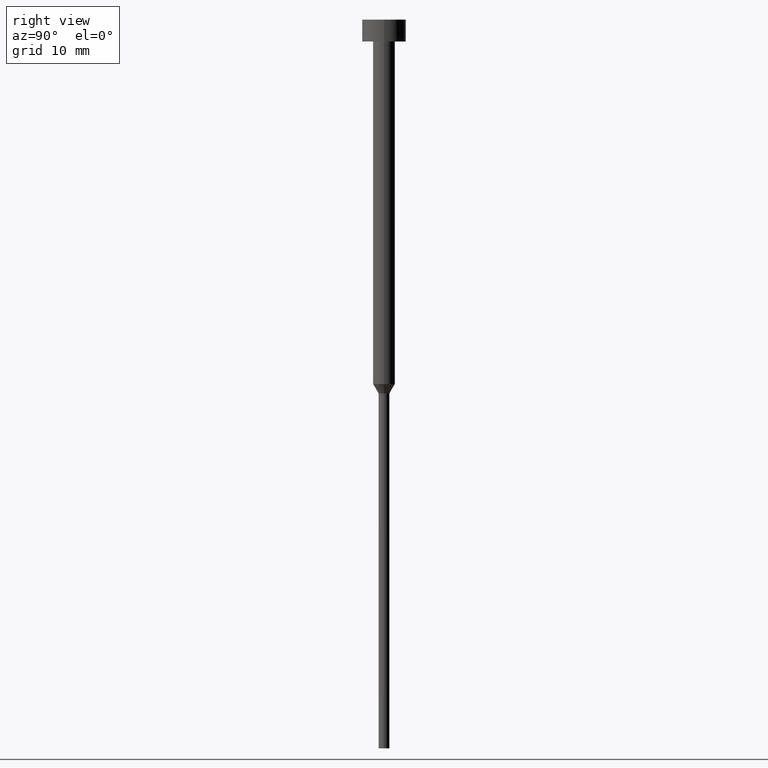
[diagram: clean part render]
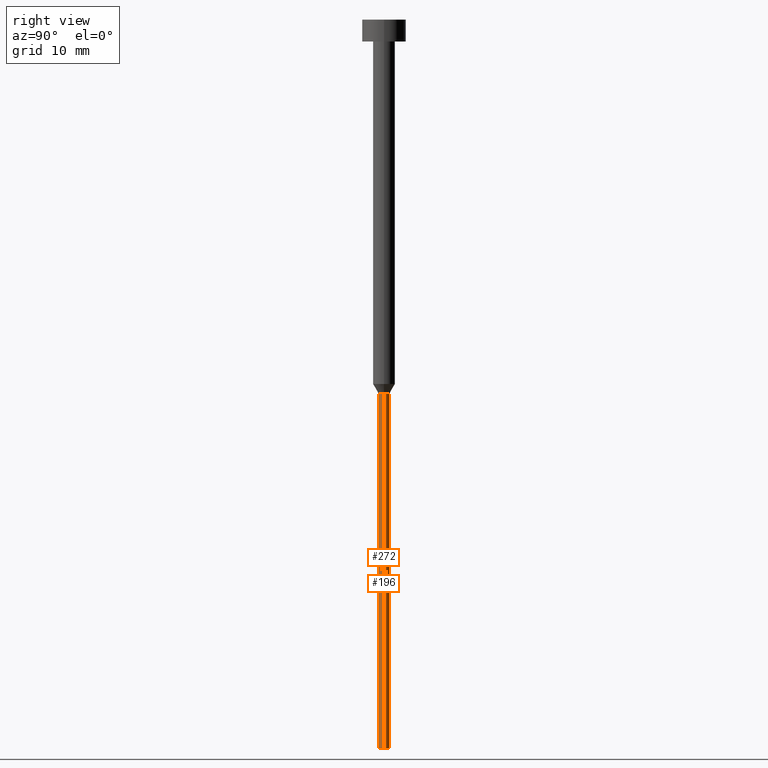
[diagram: same view with one multi-face feature highlighted, each face labeled with its STEP entity id]
A machine part, right view. The highlighted faces form ONE feature: a constant-radius fillet chain: 2 tangent blend faces with common blend radius 0.75 mm. The faces share edges in the B-rep.
Their STEP definitions:
[1] entity #272 (Cylinder):
#12 = CARTESIAN_POINT ( 'NONE',  ( 0.000000000000000000, 0.000000000000000000, -100.0000000000000000 ) ) ;
#19 = LINE ( 'NONE', #129, #176 ) ;
#20 = DIRECTION ( 'NONE',  ( -0.000000000000000000, -0.000000000000000000, 1.000000000000000000 ) ) ;
#25 = VERTEX_POINT ( 'NONE', #67 ) ;
#42 = VERTEX_POINT ( 'NONE', #286 ) ;
#43 = DIRECTION ( 'NONE',  ( -0.000000000000000000, -0.000000000000000000, 1.000000000000000000 ) ) ;
#49 = DIRECTION ( 'NONE',  ( 1.000000000000000000, 0.000000000000000000, 0.000000000000000000 ) ) ;
#67 = CARTESIAN_POINT ( 'NONE',  ( 0.7500000000000000000, 0.000000000000000000, -100.0000000000000000 ) ) ;
#74 = CARTESIAN_POINT ( 'NONE',  ( 0.000000000000000000, 0.000000000000000000, -51.29903810567665090 ) ) ;
#79 = DIRECTION ( 'NONE',  ( -0.000000000000000000, -0.000000000000000000, 1.000000000000000000 ) ) ;
#84 = ORIENTED_EDGE ( 'NONE', *, *, #245, .F. ) ;
#118 = FACE_OUTER_BOUND ( 'NONE', #121, .T. ) ;
#121 = EDGE_LOOP ( 'NONE', ( #84, #133, #344, #165 ) ) ;
#127 = EDGE_CURVE ( 'NONE', #290, #25, #342, .T. ) ;
#128 = CYLINDRICAL_SURFACE ( 'NONE', #171, 0.7500000000000000000 ) ;
#129 = CARTESIAN_POINT ( 'NONE',  ( -0.7500000000000000000, 9.184850993605149670E-17, 0.000000000000000000 ) ) ;
#133 = ORIENTED_EDGE ( 'NONE', *, *, #127, .T. ) ;
#151 = CARTESIAN_POINT ( 'NONE',  ( -0.7500000000000000000, 9.184850993605149670E-17, -51.29903810567665090 ) ) ;
#162 = VECTOR ( 'NONE', #20, 1000.000000000000000 ) ;
#165 = ORIENTED_EDGE ( 'NONE', *, *, #330, .F. ) ;
#171 = AXIS2_PLACEMENT_3D ( 'NONE', #349, #43, #260 ) ;
#176 = VECTOR ( 'NONE', #352, 1000.000000000000000 ) ;
#178 = VERTEX_POINT ( 'NONE', #151 ) ;
#197 = AXIS2_PLACEMENT_3D ( 'NONE', #74, #79, #49 ) ;
#208 = DIRECTION ( 'NONE',  ( -0.000000000000000000, -0.000000000000000000, 1.000000000000000000 ) ) ;
#245 = EDGE_CURVE ( 'NONE', #290, #178, #19, .T. ) ;
#247 = CIRCLE ( 'NONE', #197, 0.7500000000000000000 ) ;
#260 = DIRECTION ( 'NONE',  ( 1.000000000000000000, 0.000000000000000000, 0.000000000000000000 ) ) ;
#261 = LINE ( 'NONE', #318, #162 ) ;
#272 = ADVANCED_FACE ( 'NONE', ( #118 ), #128, .T. ) ;
#286 = CARTESIAN_POINT ( 'NONE',  ( 0.7500000000000000000, 0.000000000000000000, -51.29903810567665090 ) ) ;
#290 = VERTEX_POINT ( 'NONE', #312 ) ;
#310 = AXIS2_PLACEMENT_3D ( 'NONE', #12, #208, #313 ) ;
#312 = CARTESIAN_POINT ( 'NONE',  ( -0.7500000000000000000, 9.184850993605149670E-17, -100.0000000000000000 ) ) ;
#313 = DIRECTION ( 'NONE',  ( 1.000000000000000000, 0.000000000000000000, 0.000000000000000000 ) ) ;
#318 = CARTESIAN_POINT ( 'NONE',  ( 0.7500000000000000000, 0.000000000000000000, 0.000000000000000000 ) ) ;
#330 = EDGE_CURVE ( 'NONE', #178, #42, #247, .T. ) ;
#342 = CIRCLE ( 'NONE', #310, 0.7500000000000000000 ) ;
#344 = ORIENTED_EDGE ( 'NONE', *, *, #345, .T. ) ;
#345 = EDGE_CURVE ( 'NONE', #25, #42, #261, .T. ) ;
#349 = CARTESIAN_POINT ( 'NONE',  ( 0.000000000000000000, 0.000000000000000000, 0.000000000000000000 ) ) ;
#352 = DIRECTION ( 'NONE',  ( -0.000000000000000000, -0.000000000000000000, 1.000000000000000000 ) ) ;
[2] entity #196 (Cylinder):
#9 = ORIENTED_EDGE ( 'NONE', *, *, #245, .T. ) ;
#11 = EDGE_CURVE ( 'NONE', #25, #290, #216, .T. ) ;
#19 = LINE ( 'NONE', #129, #176 ) ;
#20 = DIRECTION ( 'NONE',  ( -0.000000000000000000, -0.000000000000000000, 1.000000000000000000 ) ) ;
#25 = VERTEX_POINT ( 'NONE', #67 ) ;
#36 = AXIS2_PLACEMENT_3D ( 'NONE', #309, #233, #267 ) ;
#42 = VERTEX_POINT ( 'NONE', #286 ) ;
#57 = AXIS2_PLACEMENT_3D ( 'NONE', #94, #311, #255 ) ;
#59 = AXIS2_PLACEMENT_3D ( 'NONE', #346, #243, #210 ) ;
#67 = CARTESIAN_POINT ( 'NONE',  ( 0.7500000000000000000, 0.000000000000000000, -100.0000000000000000 ) ) ;
#76 = EDGE_LOOP ( 'NONE', ( #320, #9, #125, #213 ) ) ;
#78 = FACE_OUTER_BOUND ( 'NONE', #76, .T. ) ;
#94 = CARTESIAN_POINT ( 'NONE',  ( 0.000000000000000000, 0.000000000000000000, -100.0000000000000000 ) ) ;
#125 = ORIENTED_EDGE ( 'NONE', *, *, #230, .F. ) ;
#129 = CARTESIAN_POINT ( 'NONE',  ( -0.7500000000000000000, 9.184850993605149670E-17, 0.000000000000000000 ) ) ;
#151 = CARTESIAN_POINT ( 'NONE',  ( -0.7500000000000000000, 9.184850993605149670E-17, -51.29903810567665090 ) ) ;
#162 = VECTOR ( 'NONE', #20, 1000.000000000000000 ) ;
#176 = VECTOR ( 'NONE', #352, 1000.000000000000000 ) ;
#178 = VERTEX_POINT ( 'NONE', #151 ) ;
#196 = ADVANCED_FACE ( 'NONE', ( #78 ), #322, .T. ) ;
#210 = DIRECTION ( 'NONE',  ( 1.000000000000000000, 0.000000000000000000, 0.000000000000000000 ) ) ;
#213 = ORIENTED_EDGE ( 'NONE', *, *, #345, .F. ) ;
#215 = CIRCLE ( 'NONE', #36, 0.7500000000000000000 ) ;
#216 = CIRCLE ( 'NONE', #57, 0.7500000000000000000 ) ;
#230 = EDGE_CURVE ( 'NONE', #42, #178, #215, .T. ) ;
#233 = DIRECTION ( 'NONE',  ( -0.000000000000000000, -0.000000000000000000, 1.000000000000000000 ) ) ;
#243 = DIRECTION ( 'NONE',  ( -0.000000000000000000, -0.000000000000000000, 1.000000000000000000 ) ) ;
#245 = EDGE_CURVE ( 'NONE', #290, #178, #19, .T. ) ;
#255 = DIRECTION ( 'NONE',  ( 1.000000000000000000, 0.000000000000000000, 0.000000000000000000 ) ) ;
#261 = LINE ( 'NONE', #318, #162 ) ;
#267 = DIRECTION ( 'NONE',  ( 1.000000000000000000, 0.000000000000000000, 0.000000000000000000 ) ) ;
#286 = CARTESIAN_POINT ( 'NONE',  ( 0.7500000000000000000, 0.000000000000000000, -51.29903810567665090 ) ) ;
#290 = VERTEX_POINT ( 'NONE', #312 ) ;
#309 = CARTESIAN_POINT ( 'NONE',  ( 0.000000000000000000, 0.000000000000000000, -51.29903810567665090 ) ) ;
#311 = DIRECTION ( 'NONE',  ( -0.000000000000000000, -0.000000000000000000, 1.000000000000000000 ) ) ;
#312 = CARTESIAN_POINT ( 'NONE',  ( -0.7500000000000000000, 9.184850993605149670E-17, -100.0000000000000000 ) ) ;
#318 = CARTESIAN_POINT ( 'NONE',  ( 0.7500000000000000000, 0.000000000000000000, 0.000000000000000000 ) ) ;
#320 = ORIENTED_EDGE ( 'NONE', *, *, #11, .T. ) ;
#322 = CYLINDRICAL_SURFACE ( 'NONE', #59, 0.7500000000000000000 ) ;
#345 = EDGE_CURVE ( 'NONE', #25, #42, #261, .T. ) ;
#346 = CARTESIAN_POINT ( 'NONE',  ( 0.000000000000000000, 0.000000000000000000, 0.000000000000000000 ) ) ;
#352 = DIRECTION ( 'NONE',  ( -0.000000000000000000, -0.000000000000000000, 1.000000000000000000 ) ) ;